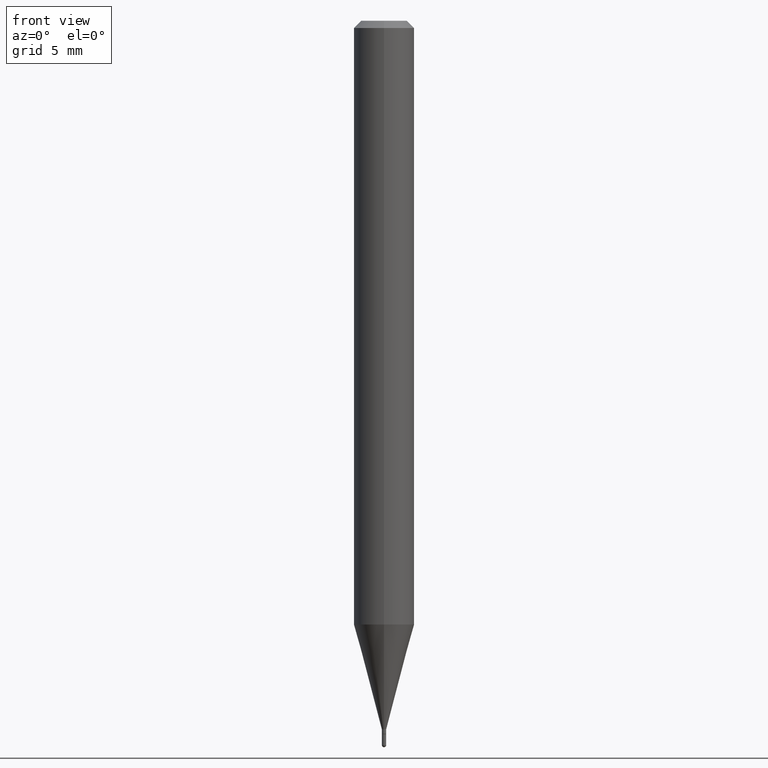
[diagram: clean part render]
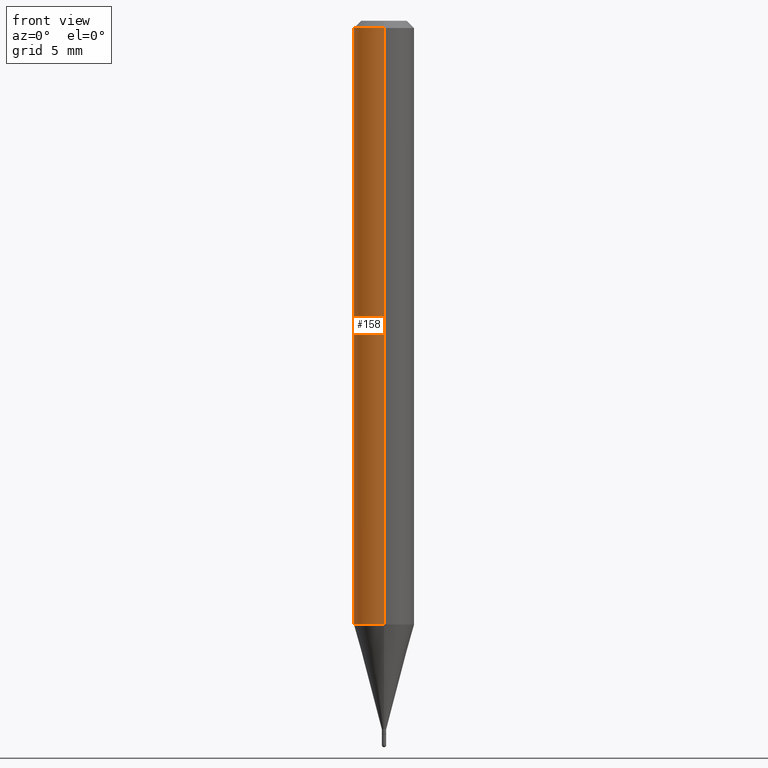
[diagram: same view with one face highlighted and labeled with its STEP entity id]
A machine part, front view. The second image highlights one B-rep face of the part: STEP entity #158.
In plain terms, the highlighted cylindrical surface (edge-blend (fillet) strip) has radius 1.5875 mm, axis along (-0, 0, 1).
Its self-contained STEP definition (entity closure, byte-faithful):
#22 = CARTESIAN_POINT ( 'NONE',  ( 0.000000000000000000, 0.000000000000000000, 0.000000000000000000 ) ) ;
#38 = CARTESIAN_POINT ( 'NONE',  ( 4.440892098500625669E-16, 0.06250000000000000000, -2.182185395451968544E-16 ) ) ;
#56 = DIRECTION ( 'NONE',  ( -2.445458126525809980E-29, 3.491496632723149670E-15, 1.000000000000000000 ) ) ;
#61 = CARTESIAN_POINT ( 'NONE',  ( -4.364351673553916201E-16, -0.06250000000000000000, 2.182185395451968544E-16 ) ) ;
#63 = DIRECTION ( 'NONE',  ( -6.982962677686265922E-15, -1.000000000000000000, 3.491496632723149670E-15 ) ) ;
#75 = EDGE_CURVE ( 'NONE', #76, #404, #128, .T. ) ;
#76 = VERTEX_POINT ( 'NONE', #452 ) ;
#117 = ORIENTED_EDGE ( 'NONE', *, *, #292, .F. ) ;
#118 = ORIENTED_EDGE ( 'NONE', *, *, #468, .T. ) ;
#128 = CIRCLE ( 'NONE', #325, 0.06250000000000000000 ) ;
#137 = DIRECTION ( 'NONE',  ( -2.445458126525809980E-29, 3.491496632723149670E-15, 1.000000000000000000 ) ) ;
#144 = AXIS2_PLACEMENT_3D ( 'NONE', #22, #258, #63 ) ;
#146 = CARTESIAN_POINT ( 'NONE',  ( -4.364351673553912750E-16, -0.06250000000000005551, -0.01499999999999979128 ) ) ;
#158 = ADVANCED_FACE ( 'NONE', ( #369 ), #263, .T. ) ;
#188 = LINE ( 'NONE', #38, #474 ) ;
#192 = VERTEX_POINT ( 'NONE', #146 ) ;
#201 = EDGE_CURVE ( 'NONE', #76, #362, #188, .T. ) ;
#215 = CARTESIAN_POINT ( 'NONE',  ( 3.048363948500623779E-29, -4.352293889662820789E-15, -1.246541053161005941 ) ) ;
#234 = DIRECTION ( 'NONE',  ( -6.982962677686265922E-15, -1.000000000000000000, 3.483106191921935554E-15 ) ) ;
#236 = AXIS2_PLACEMENT_3D ( 'NONE', #289, #56, #234 ) ;
#258 = DIRECTION ( 'NONE',  ( -2.445458126525809980E-29, 3.491496632723149670E-15, 1.000000000000000000 ) ) ;
#261 = DIRECTION ( 'NONE',  ( -6.982962677686265922E-15, -1.000000000000000000, 4.370956789862821150E-15 ) ) ;
#263 = CYLINDRICAL_SURFACE ( 'NONE', #144, 0.06250000000000000000 ) ;
#285 = CIRCLE ( 'NONE', #236, 0.06250000000000000000 ) ;
#289 = CARTESIAN_POINT ( 'NONE',  ( 3.668187189788717229E-31, -5.237244949084727833E-17, -0.01500000000000000812 ) ) ;
#292 = EDGE_CURVE ( 'NONE', #362, #192, #285, .T. ) ;
#320 = CARTESIAN_POINT ( 'NONE',  ( -4.364351673553611010E-16, -0.06250000000000435763, -1.246541053161005719 ) ) ;
#325 = AXIS2_PLACEMENT_3D ( 'NONE', #215, #495, #261 ) ;
#362 = VERTEX_POINT ( 'NONE', #472 ) ;
#363 = LINE ( 'NONE', #61, #407 ) ;
#369 = FACE_OUTER_BOUND ( 'NONE', #393, .T. ) ;
#393 = EDGE_LOOP ( 'NONE', ( #427, #476, #118, #117 ) ) ;
#404 = VERTEX_POINT ( 'NONE', #320 ) ;
#407 = VECTOR ( 'NONE', #137, 39.37007874015748143 ) ;
#427 = ORIENTED_EDGE ( 'NONE', *, *, #201, .F. ) ;
#452 = CARTESIAN_POINT ( 'NONE',  ( 4.440892098500930859E-16, 0.06249999999999565625, -1.246541053161006163 ) ) ;
#468 = EDGE_CURVE ( 'NONE', #404, #192, #363, .T. ) ;
#472 = CARTESIAN_POINT ( 'NONE',  ( 4.440892098500932831E-16, 0.06249999999999995143, -0.01500000000000022669 ) ) ;
#474 = VECTOR ( 'NONE', #491, 39.37007874015748143 ) ;
#476 = ORIENTED_EDGE ( 'NONE', *, *, #75, .T. ) ;
#491 = DIRECTION ( 'NONE',  ( -2.445458126525809980E-29, 3.491496632723149670E-15, 1.000000000000000000 ) ) ;
#495 = DIRECTION ( 'NONE',  ( -2.445458126525809980E-29, 3.491496632723149670E-15, 1.000000000000000000 ) ) ;